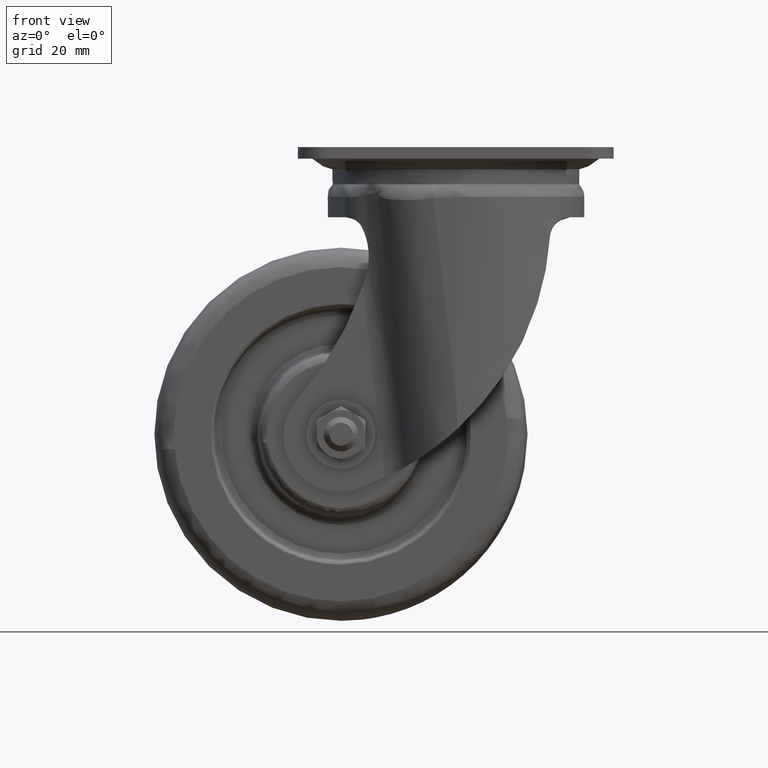
[diagram: clean part render]
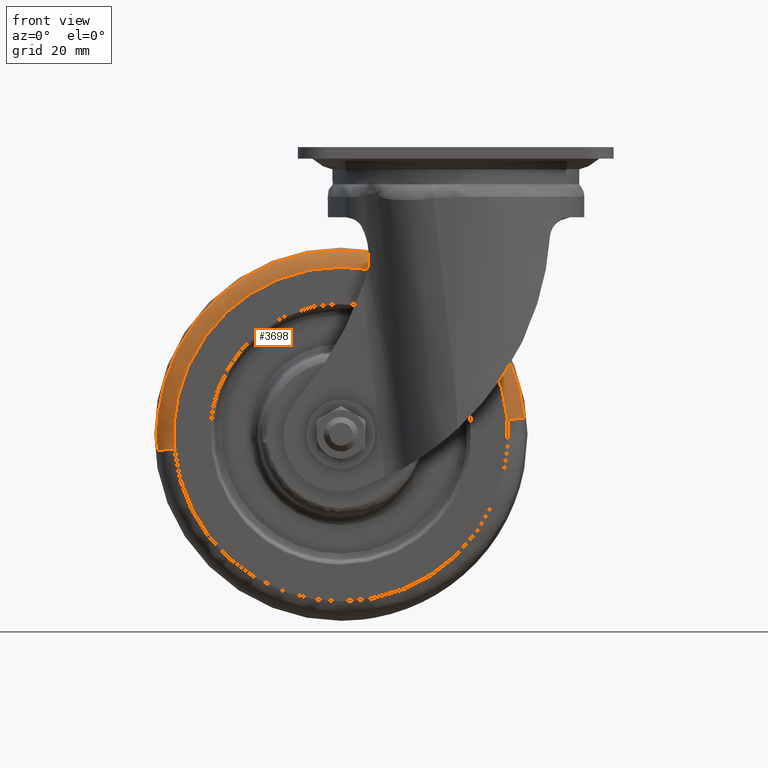
[diagram: same view with one face highlighted and labeled with its STEP entity id]
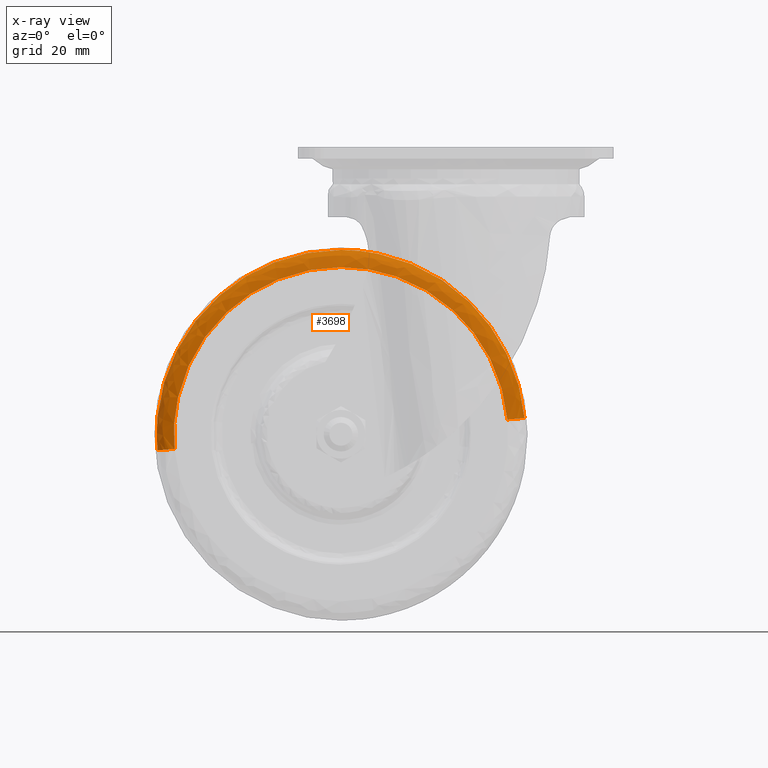
[diagram: x-ray of the same camera — body ghosted, the highlighted face saturated]
A machine part, front view. The second image highlights one B-rep face of the part: STEP entity #3698.
The next image is the same camera in x-ray: the body ghosted, the highlighted face saturated — about 0% of this face is hidden behind the body in this view.
In plain terms, the highlighted face is a freeform B-spline surface patch.
Its self-contained STEP definition (entity closure, byte-faithful):
#3254=CARTESIAN_POINT('',(-40.0,-15.624991867398739,-35.816021869721020));
#3255=VERTEX_POINT('',#3254);
#3264=CARTESIAN_POINT('',(23.935817926798560,-15.624988052342131,-94.361360709245218));
#3265=VERTEX_POINT('',#3264);
#3266=CARTESIAN_POINT('',(23.935817926798556,-15.624988052342138,-94.361360709245218));
#3267=CARTESIAN_POINT('',(18.772575838400797,-15.624991925082632,-35.816021821541383));
#3268=CARTESIAN_POINT('',(-40.0,-15.624991867398739,-35.816021869721020));
#3276=(BOUNDED_CURVE()B_SPLINE_CURVE(2,(#3266,#3267,#3268),.UNSPECIFIED.,.F.,.U.)B_SPLINE_CURVE_WITH_KNOTS((3,3),(0.265281546539669,0.500000000000000),.UNSPECIFIED.)CURVE()GEOMETRIC_REPRESENTATION_ITEM()RATIONAL_B_SPLINE_CURVE((0.966381847839370,0.725010226604353,1.0))REPRESENTATION_ITEM(''));
#3277=EDGE_CURVE('',#3265,#3255,#3276,.T.);
#3341=CARTESIAN_POINT('',(-103.935818024643200,-15.624987293305100,-105.638639299383900));
#3342=VERTEX_POINT('',#3341);
#3356=CARTESIAN_POINT('',(-40.0,-15.624991867398739,-35.816021869721020));
#3357=CARTESIAN_POINT('',(-104.183977714745410,-15.624991919330945,-35.816021913093536));
#3358=CARTESIAN_POINT('',(-104.183978251822200,-15.624987667071879,-100.000000755204500));
#3359=CARTESIAN_POINT('',(-104.183978275459400,-15.624987479927096,-102.824780877851950));
#3360=CARTESIAN_POINT('',(-103.935818024643200,-15.624987293305097,-105.638639299383870));
#3368=(BOUNDED_CURVE()B_SPLINE_CURVE(2,(#3356,#3357,#3358,#3359,#3360),.UNSPECIFIED.,.F.,.U.)B_SPLINE_CURVE_WITH_KNOTS((3,2,3),(0.500000000000000,0.750000000000000,0.765281543016224),.UNSPECIFIED.)CURVE()GEOMETRIC_REPRESENTATION_ITEM()RATIONAL_B_SPLINE_CURVE((1.0,0.707106781186547,1.0,0.982096558710167,0.966381855086007))REPRESENTATION_ITEM(''));
#3369=EDGE_CURVE('',#3255,#3342,#3368,.T.);
#3568=CARTESIAN_POINT('',(-97.991530805863334,-21.0,-105.114399639675300));
#3569=VERTEX_POINT('',#3568);
#3585=CARTESIAN_POINT('',(-103.935818024643150,-15.624987293305093,-105.638639299383900));
#3586=CARTESIAN_POINT('',(-103.375046881056040,-20.999999935092074,-105.589183668895880));
#3587=CARTESIAN_POINT('',(-97.991530805863334,-20.999999999999989,-105.114399639675330));
#3595=(BOUNDED_CURVE()B_SPLINE_CURVE(2,(#3585,#3586,#3587),.UNSPECIFIED.,.F.,.U.)B_SPLINE_CURVE_WITH_KNOTS((3,3),(-1.716575284849183,-0.279319867712423),.UNSPECIFIED.)CURVE()GEOMETRIC_REPRESENTATION_ITEM()RATIONAL_B_SPLINE_CURVE((0.891951581940979,0.663226591653140,0.893261815785672))REPRESENTATION_ITEM(''));
#3596=EDGE_CURVE('',#3342,#3569,#3595,.T.);
#3600=CARTESIAN_POINT('',(17.991530805863359,-21.0,-94.885600360324645));
#3601=VERTEX_POINT('',#3600);
#3602=CARTESIAN_POINT('',(23.935817926798563,-15.624988052342129,-94.361360709245218));
#3603=CARTESIAN_POINT('',(23.375046181551287,-20.999999934121949,-94.410816392794914));
#3604=CARTESIAN_POINT('',(17.991530805863352,-20.999999999999996,-94.885600360324645));
#3612=(BOUNDED_CURVE()B_SPLINE_CURVE(2,(#3602,#3603,#3604),.UNSPECIFIED.,.F.,.U.)B_SPLINE_CURVE_WITH_KNOTS((3,3),(-1.716575148021020,-0.279319867712426),.UNSPECIFIED.)CURVE()GEOMETRIC_REPRESENTATION_ITEM()RATIONAL_B_SPLINE_CURVE((0.891951538391284,0.663226613552726,0.893261815785671))REPRESENTATION_ITEM(''));
#3613=EDGE_CURVE('',#3265,#3601,#3612,.T.);
#3633=CARTESIAN_POINT('',(24.121653150751698,-15.229835289131922,-96.147103302800119));
#3634=CARTESIAN_POINT('',(24.043258719296592,-15.229835289131923,-95.258198757294068));
#3635=CARTESIAN_POINT('',(18.322825887193009,-15.229835289131923,-30.394934207299276));
#3636=CARTESIAN_POINT('',(-45.641119952753861,-15.229835289131927,-36.036054160053133));
#3637=CARTESIAN_POINT('',(-109.605065792700730,-15.229835289131923,-41.677174112807016));
#3638=CARTESIAN_POINT('',(-103.884632960568440,-15.229835289131922,-106.540438663126950));
#3639=CARTESIAN_POINT('',(-103.806238529085330,-15.229835289131930,-107.429343208950700));
#3640=CARTESIAN_POINT('',(23.885713012826614,-21.393378541353623,-96.161280307501016));
#3641=CARTESIAN_POINT('',(23.807607039202196,-21.393378541353623,-95.275646548862824));
#3642=CARTESIAN_POINT('',(18.108222942511343,-21.393378541353623,-30.651050948157579));
#3643=CARTESIAN_POINT('',(-45.620363054665546,-21.393378541353627,-36.271414002823107));
#3644=CARTESIAN_POINT('',(-109.348949051842450,-21.393378541353623,-41.891777057488660));
#3645=CARTESIAN_POINT('',(-103.649564955123030,-21.393378541353623,-106.516372658517890));
#3646=CARTESIAN_POINT('',(-103.571458981470710,-21.393378541353627,-107.402006417472630));
#3647=CARTESIAN_POINT('',(17.739727144577952,-20.986961148077466,-96.530575974241557));
#3648=CARTESIAN_POINT('',(17.669135186020192,-20.986961148077459,-95.730142682317094));
#3649=CARTESIAN_POINT('',(12.518047922284000,-20.986961148077466,-37.322615539836235));
#3650=CARTESIAN_POINT('',(-45.079668268939884,-20.986961148077466,-42.402283808776112));
#3651=CARTESIAN_POINT('',(-102.677384460163780,-20.986961148077466,-47.481952077715995));
#3652=CARTESIAN_POINT('',(-97.526297196401771,-20.986961148077455,-105.889479220489680));
#3653=CARTESIAN_POINT('',(-97.455705237818776,-20.986961148077466,-106.689912512700200));
#3661=(BOUNDED_SURFACE()B_SPLINE_SURFACE(2,2,((#3633,#3640,#3647),(#3634,#3641,#3648),(#3635,#3642,#3649),(#3636,#3643,#3650),(#3637,#3644,#3651),(#3638,#3645,#3652),(#3639,#3646,#3653)),.UNSPECIFIED.,.F.,.F.,.U.)B_SPLINE_SURFACE_WITH_KNOTS((3,1,2,1,3),(3,3),(0.0,2.127805637811939,108.518087530192300,214.908369422572800,217.036175061158590),(0.0,10.138045882010189),.UNSPECIFIED.)GEOMETRIC_REPRESENTATION_ITEM()RATIONAL_B_SPLINE_SURFACE(((0.926676781947452,0.646655218171542,0.928134804438139),(0.921311295620686,0.642911065087292,0.922760876117476),(0.647671492951131,0.451959257787417,0.648690531759156),(0.915945809293920,0.639166912003042,0.917386947796813),(0.647671492951131,0.451959257787417,0.648690531759156),(0.921311295622638,0.642911065088654,0.922760876119430),(0.926676781951355,0.646655218174266,0.928134804442048)))REPRESENTATION_ITEM('')SURFACE());
#3662=CARTESIAN_POINT('',(-40.0,-21.0,-41.783381000000013));
#3663=VERTEX_POINT('',#3662);
#3664=CARTESIAN_POINT('',(-40.0,-21.0,-41.783381000000013));
#3665=CARTESIAN_POINT('',(-98.216619004271720,-21.000000000000004,-41.783381000376735));
#3666=CARTESIAN_POINT('',(-98.216619008936760,-21.0,-100.000000000788110));
#3667=CARTESIAN_POINT('',(-98.216619009142065,-20.999999999999996,-102.562152962626310));
#3668=CARTESIAN_POINT('',(-97.991530805863334,-20.999999999999996,-105.114399639675360));
#3676=(BOUNDED_CURVE()B_SPLINE_CURVE(2,(#3664,#3665,#3666,#3667,#3668),.UNSPECIFIED.,.F.,.U.)B_SPLINE_CURVE_WITH_KNOTS((3,2,3),(0.500000000000000,0.750000000000000,0.765281545145618),.UNSPECIFIED.)CURVE()GEOMETRIC_REPRESENTATION_ITEM()RATIONAL_B_SPLINE_CURVE((1.0,0.707106781186548,1.0,0.982096556215427,0.966381850706503))REPRESENTATION_ITEM(''));
#3677=EDGE_CURVE('',#3663,#3569,#3676,.T.);
#3678=ORIENTED_EDGE('',*,*,#3677,.F.);
#3679=CARTESIAN_POINT('',(17.991530805863359,-21.0,-94.885600360324645));
#3680=CARTESIAN_POINT('',(13.308330206342553,-21.000000000000004,-41.783380999588587));
#3681=CARTESIAN_POINT('',(-40.0,-21.0,-41.783381000000013));
#3689=(BOUNDED_CURVE()B_SPLINE_CURVE(2,(#3679,#3680,#3681),.UNSPECIFIED.,.F.,.U.)B_SPLINE_CURVE_WITH_KNOTS((3,3),(0.265281545145618,0.500000000000000),.UNSPECIFIED.)CURVE()GEOMETRIC_REPRESENTATION_ITEM()RATIONAL_B_SPLINE_CURVE((0.966381850706502,0.725010224971120,1.0))REPRESENTATION_ITEM(''));
#3690=EDGE_CURVE('',#3601,#3663,#3689,.T.);
#3691=ORIENTED_EDGE('',*,*,#3690,.F.);
#3692=ORIENTED_EDGE('',*,*,#3613,.F.);
#3693=ORIENTED_EDGE('',*,*,#3277,.T.);
#3694=ORIENTED_EDGE('',*,*,#3369,.T.);
#3695=ORIENTED_EDGE('',*,*,#3596,.T.);
#3696=EDGE_LOOP('',(#3678,#3691,#3692,#3693,#3694,#3695));
#3697=FACE_OUTER_BOUND('',#3696,.T.);
#3698=ADVANCED_FACE('',(#3697),#3661,.T.);